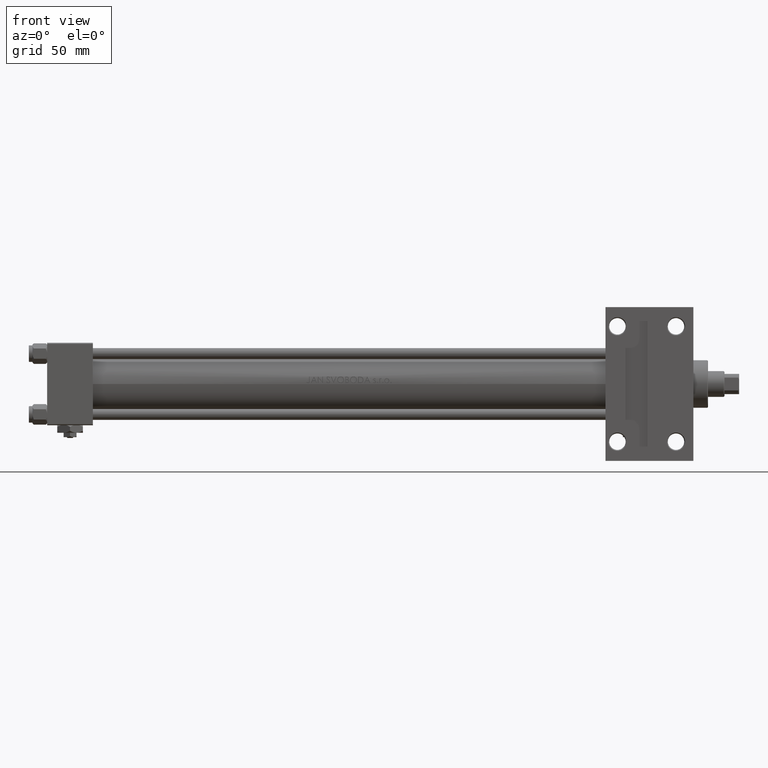
[diagram: clean part render]
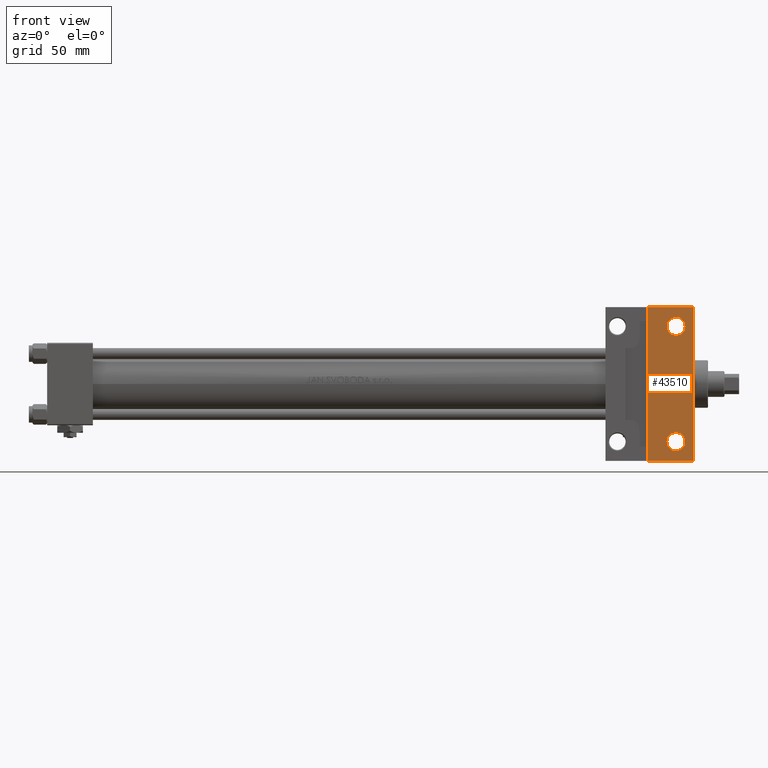
[diagram: same view with one face highlighted and labeled with its STEP entity id]
A machine part, front view. The second image highlights one B-rep face of the part: STEP entity #43510.
In plain terms, the highlighted planar face has unit normal (0, -1, -0).
Its self-contained STEP definition (entity closure, byte-faithful):
#54 = CARTESIAN_POINT ( 'NONE',  ( 353.0000000000000568, 22.50000000000000355, -22.49999999999999645 ) ) ;
#1542 = CARTESIAN_POINT ( 'NONE',  ( 343.5000000000000000, -31.50000000000000000, -22.50000000000000000 ) ) ;
#2356 = CARTESIAN_POINT ( 'NONE',  ( 353.0000000000000568, -42.00000000000003553, -22.50000000000000000 ) ) ;
#4031 = CIRCLE ( 'NONE', #13704, 4.999499999999878597 ) ;
#5136 = CARTESIAN_POINT ( 'NONE',  ( 328.0000000000000568, -41.99999999999997868, -22.50000000000000000 ) ) ;
#6402 = DIRECTION ( 'NONE',  ( 0.000000000000000000, -1.000000000000000000, -7.709882115452476934E-17 ) ) ;
#7622 = CARTESIAN_POINT ( 'NONE',  ( 343.5000000000000000, -31.50000000000000000, -22.50000000000000000 ) ) ;
#8463 = VECTOR ( 'NONE', #20480, 1000.000000000000000 ) ;
#8586 = EDGE_CURVE ( 'NONE', #42601, #26404, #21878, .T. ) ;
#8588 = DIRECTION ( 'NONE',  ( 0.000000000000000000, 7.709882115452476934E-17, -1.000000000000000000 ) ) ;
#8858 = DIRECTION ( 'NONE',  ( -0.000000000000000000, -7.709882115452476934E-17, 1.000000000000000000 ) ) ;
#9870 = DIRECTION ( 'NONE',  ( 0.000000000000000000, 1.000000000000000000, 0.000000000000000000 ) ) ;
#9887 = CARTESIAN_POINT ( 'NONE',  ( 343.5000000000000000, 31.50000000000000000, -22.49999999999999645 ) ) ;
#10409 = ORIENTED_EDGE ( 'NONE', *, *, #21370, .F. ) ;
#10555 = DIRECTION ( 'NONE',  ( 1.000000000000000000, -2.891205793294679312E-16, 0.000000000000000000 ) ) ;
#12155 = CARTESIAN_POINT ( 'NONE',  ( 348.4994999999998981, -31.50000000000000000, -22.50000000000000000 ) ) ;
#12410 = EDGE_LOOP ( 'NONE', ( #10409, #30538, #15842, #33901 ) ) ;
#12667 = EDGE_CURVE ( 'NONE', #25036, #28782, #15577, .T. ) ;
#13353 = VERTEX_POINT ( 'NONE', #2356 ) ;
#13704 = AXIS2_PLACEMENT_3D ( 'NONE', #1542, #8858, #9870 ) ;
#14401 = AXIS2_PLACEMENT_3D ( 'NONE', #54, #8588, #27677 ) ;
#14923 = DIRECTION ( 'NONE',  ( -1.000000000000000000, -0.000000000000000000, -0.000000000000000000 ) ) ;
#15081 = DIRECTION ( 'NONE',  ( 0.000000000000000000, 1.000000000000000000, 0.000000000000000000 ) ) ;
#15577 = CIRCLE ( 'NONE', #31564, 4.999499999999878597 ) ;
#15842 = ORIENTED_EDGE ( 'NONE', *, *, #38106, .T. ) ;
#16693 = VECTOR ( 'NONE', #6402, 1000.000000000000000 ) ;
#17695 = DIRECTION ( 'NONE',  ( -0.000000000000000000, -7.709882115452476934E-17, 1.000000000000000000 ) ) ;
#17956 = ORIENTED_EDGE ( 'NONE', *, *, #12667, .T. ) ;
#19194 = FACE_OUTER_BOUND ( 'NONE', #12410, .T. ) ;
#20480 = DIRECTION ( 'NONE',  ( -0.000000000000000000, -1.000000000000000000, -0.000000000000000000 ) ) ;
#20543 = VECTOR ( 'NONE', #14923, 1000.000000000000000 ) ;
#20989 = CARTESIAN_POINT ( 'NONE',  ( 353.0000000000000568, 22.50000000000000355, -22.49999999999999645 ) ) ;
#21370 = EDGE_CURVE ( 'NONE', #34056, #27577, #27997, .T. ) ;
#21878 = CIRCLE ( 'NONE', #36266, 4.999499999999878597 ) ;
#22081 = CARTESIAN_POINT ( 'NONE',  ( 353.0000000000000568, 41.99999999999996447, -22.50000000000000000 ) ) ;
#22451 = CARTESIAN_POINT ( 'NONE',  ( 305.0000000000000568, -42.00000000000003553, -22.50000000000000000 ) ) ;
#22891 = AXIS2_PLACEMENT_3D ( 'NONE', #9887, #17695, #25214 ) ;
#22949 = DIRECTION ( 'NONE',  ( -0.000000000000000000, -7.709882115452476934E-17, 1.000000000000000000 ) ) ;
#23008 = CARTESIAN_POINT ( 'NONE',  ( 328.0000000000000568, 41.99999999999997868, -22.50000000000000000 ) ) ;
#23431 = EDGE_LOOP ( 'NONE', ( #17956, #29199 ) ) ;
#25036 = VERTEX_POINT ( 'NONE', #33491 ) ;
#25214 = DIRECTION ( 'NONE',  ( 0.000000000000000000, 1.000000000000000000, 0.000000000000000000 ) ) ;
#25496 = LINE ( 'NONE', #20989, #16693 ) ;
#25890 = CARTESIAN_POINT ( 'NONE',  ( 343.5000000000000000, 31.50000000000000000, -22.49999999999999645 ) ) ;
#26208 = LINE ( 'NONE', #22451, #20543 ) ;
#26404 = VERTEX_POINT ( 'NONE', #34662 ) ;
#26622 = DIRECTION ( 'NONE',  ( -0.000000000000000000, -7.709882115452476934E-17, 1.000000000000000000 ) ) ;
#26892 = CIRCLE ( 'NONE', #22891, 4.999499999999878597 ) ;
#27577 = VERTEX_POINT ( 'NONE', #44744 ) ;
#27677 = DIRECTION ( 'NONE',  ( 0.000000000000000000, 1.000000000000000000, 7.709882115452476934E-17 ) ) ;
#27815 = ORIENTED_EDGE ( 'NONE', *, *, #31896, .T. ) ;
#27997 = LINE ( 'NONE', #5136, #8463 ) ;
#28782 = VERTEX_POINT ( 'NONE', #12155 ) ;
#29199 = ORIENTED_EDGE ( 'NONE', *, *, #45623, .T. ) ;
#29251 = VERTEX_POINT ( 'NONE', #22081 ) ;
#30538 = ORIENTED_EDGE ( 'NONE', *, *, #43122, .T. ) ;
#30736 = EDGE_CURVE ( 'NONE', #13353, #27577, #26208, .T. ) ;
#31564 = AXIS2_PLACEMENT_3D ( 'NONE', #7622, #22949, #38255 ) ;
#31896 = EDGE_CURVE ( 'NONE', #26404, #42601, #26892, .T. ) ;
#33491 = CARTESIAN_POINT ( 'NONE',  ( 338.5005000000001587, -31.50000000000000000, -22.50000000000000000 ) ) ;
#33901 = ORIENTED_EDGE ( 'NONE', *, *, #30736, .T. ) ;
#34056 = VERTEX_POINT ( 'NONE', #23008 ) ;
#34251 = FACE_BOUND ( 'NONE', #23431, .T. ) ;
#34496 = FACE_BOUND ( 'NONE', #46693, .T. ) ;
#34662 = CARTESIAN_POINT ( 'NONE',  ( 348.4994999999998981, 31.50000000000000000, -22.49999999999999645 ) ) ;
#36266 = AXIS2_PLACEMENT_3D ( 'NONE', #25890, #26622, #15081 ) ;
#37169 = CARTESIAN_POINT ( 'NONE',  ( 305.0000000000000568, 41.99999999999997868, -22.50000000000000000 ) ) ;
#38106 = EDGE_CURVE ( 'NONE', #29251, #13353, #25496, .T. ) ;
#38255 = DIRECTION ( 'NONE',  ( 0.000000000000000000, 1.000000000000000000, 0.000000000000000000 ) ) ;
#42601 = VERTEX_POINT ( 'NONE', #47195 ) ;
#43122 = EDGE_CURVE ( 'NONE', #34056, #29251, #44952, .T. ) ;
#43231 = VECTOR ( 'NONE', #10555, 1000.000000000000000 ) ;
#43510 = ADVANCED_FACE ( 'NONE', ( #19194, #34496, #34251 ), #49578, .T. ) ;
#44744 = CARTESIAN_POINT ( 'NONE',  ( 328.0000000000000568, -41.99999999999997868, -22.50000000000000000 ) ) ;
#44952 = LINE ( 'NONE', #37169, #43231 ) ;
#45623 = EDGE_CURVE ( 'NONE', #28782, #25036, #4031, .T. ) ;
#45997 = ORIENTED_EDGE ( 'NONE', *, *, #8586, .T. ) ;
#46693 = EDGE_LOOP ( 'NONE', ( #45997, #27815 ) ) ;
#47195 = CARTESIAN_POINT ( 'NONE',  ( 338.5005000000001587, 31.50000000000000000, -22.49999999999999645 ) ) ;
#49578 = PLANE ( 'NONE',  #14401 ) ;